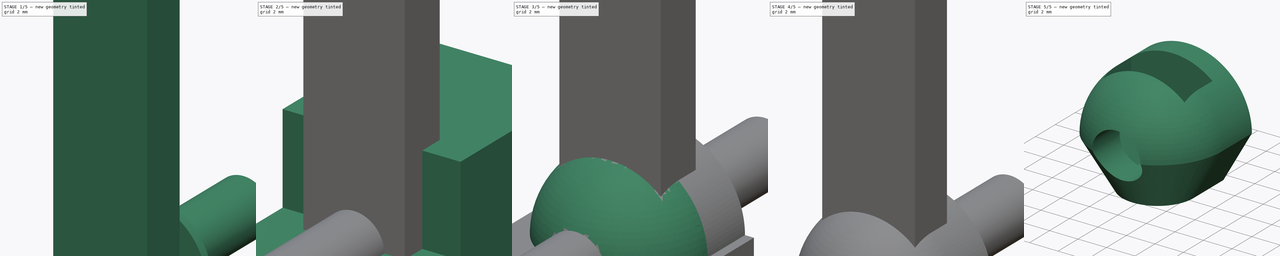
[diagram: build sequence overview — one tinted view per stage of 5, left to right]
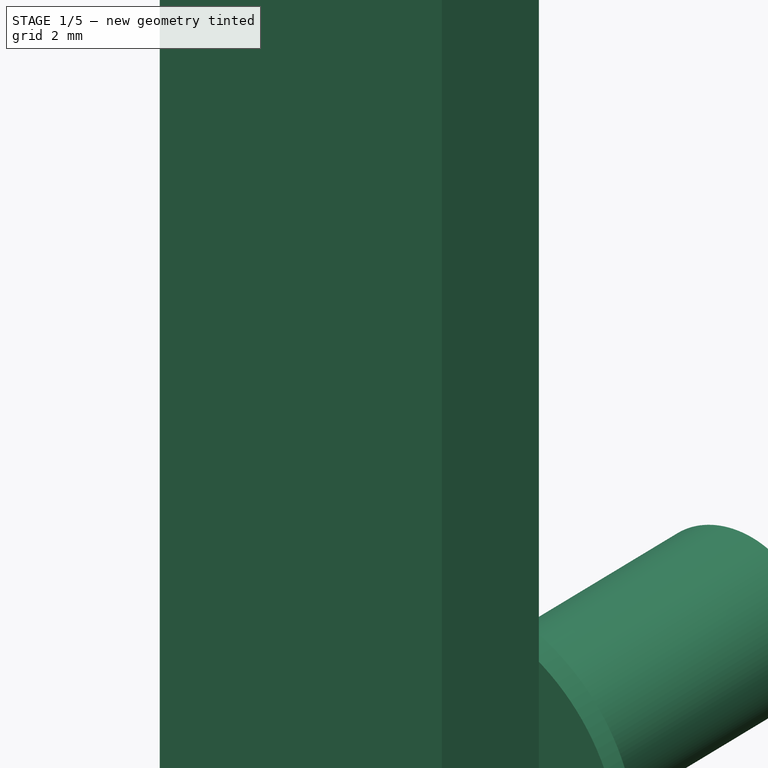
[diagram: stage 1 of 5 — iso view after this stage's code; geometry added in this stage tinted green]
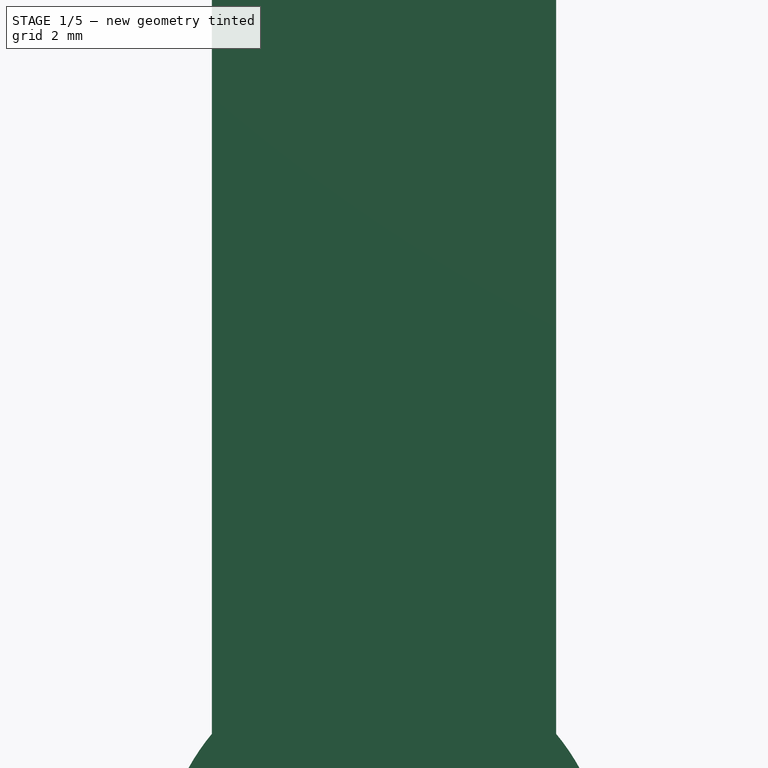
[diagram: stage 1 of 5 — front view after this stage's code; geometry added in this stage tinted green]
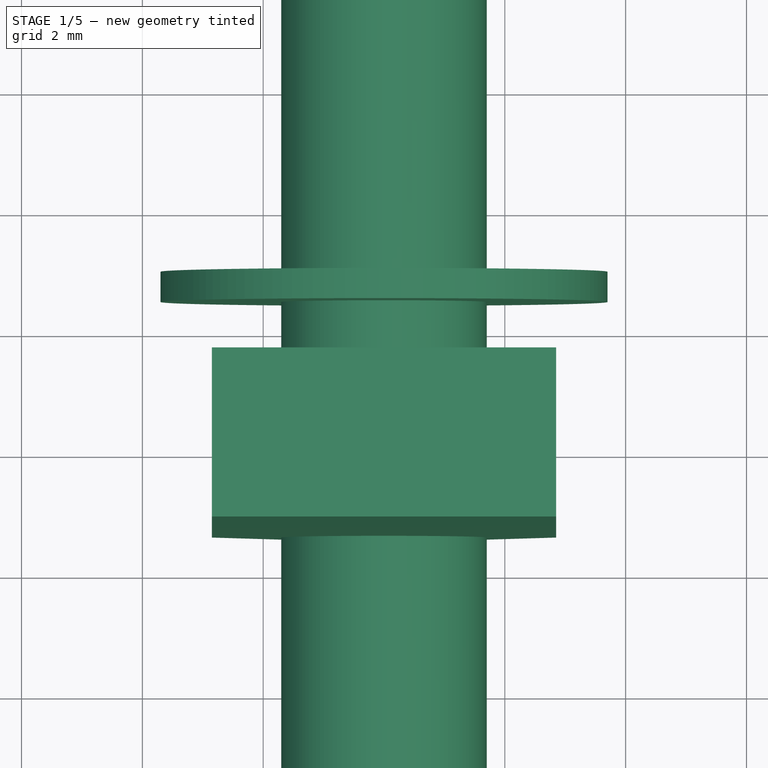
[diagram: stage 1 of 5 — top view after this stage's code; geometry added in this stage tinted green]
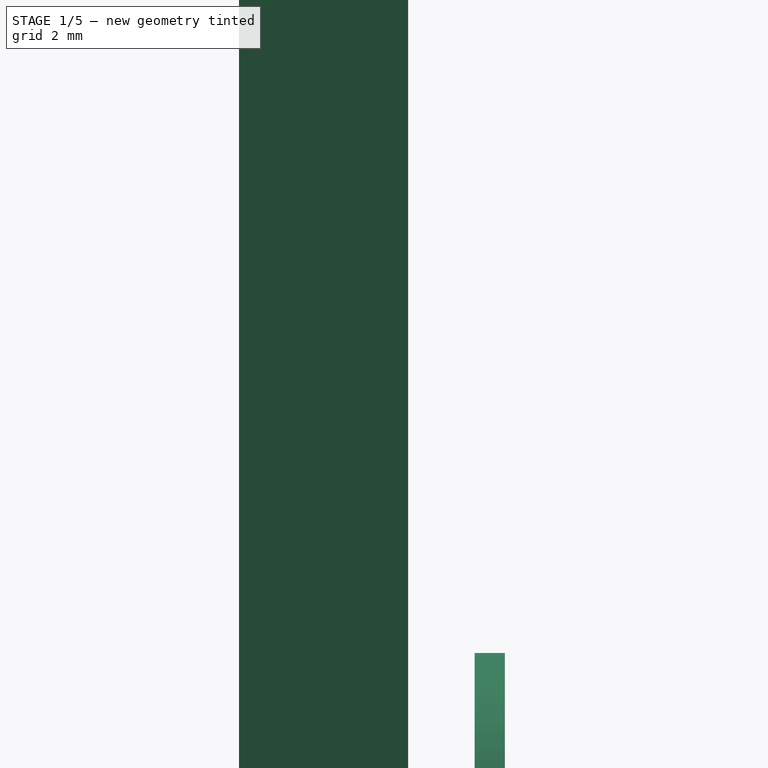
[diagram: stage 1 of 5 — right view after this stage's code; geometry added in this stage tinted green]
FCSTD DOCUMENT  (FreeCAD 0.18R16093 (Git))
Label: BallHeadHolder
License: All rights reserved
LicenseURL: http://en.wikipedia.org/wiki/All_rights_reserved
objects: Part::Cut×5, Part::Cylinder×3, Sketcher::SketchObject×3, Part::Box×2, Part::MultiFuse×2, PartDesign::Body×2, Part::Sphere×1, PartDesign::Plane×1, PartDesign::AdditiveLoft×1, PartDesign::Pad×1
note: 23 computed .brp shape members not serialized (recipe doc carries the construction recipe); baked Part::Feature solids carry a one-line shape summary decoded from their .brp

FEATURE [Sketcher::SketchObject] Sketch002
  MapMode = 5
  Placement = pos=(0,0,0) rot=(1,0,0;1.5708rad)
  Support = -> [XZ_Plane001]
  sketch-geometry (7):
    g0: LineSegment StartX=-1.42501 StartY=-2.46819 StartZ=0 EndX=1.42501 EndY=-2.46819 EndZ=0
    g1: LineSegment StartX=1.42501 StartY=-2.46819 StartZ=0 EndX=2.85 EndY=0 EndZ=0
    g2: LineSegment StartX=-1.42501 StartY=-2.46819 StartZ=0 EndX=-2.85 EndY=0 EndZ=0
    g3: Circle [constr] CenterX=-1e-16 CenterY=-2.18859e-05 CenterZ=0 NormalX=0 NormalY=0 NormalZ=1 AngleXU=0 Radius=2.85
    g4: LineSegment StartX=-2.85 StartY=0 StartZ=0 EndX=-2.85 EndY=20 EndZ=0
    g5: LineSegment StartX=2.85 StartY=0 StartZ=0 EndX=2.85 EndY=20 EndZ=0
    g6: LineSegment StartX=-2.85 StartY=20 StartZ=0 EndX=2.85 EndY=20 EndZ=0
  constraints (21):
    c: Coincident(g1,g0)
    c: Equal(g1,g0)
    c: Equal(g0,g2)
    c: Equal(g1,g0)
    c: Symmetric(g0,g0,g-2)
    c: DistanceX(g2,g1) = 5.7
    c: Diameter(g3) = 5.7
    c: Vertical(g4)
    c: Vertical(g5)
    c: Coincident(g6,g4)
    c: Coincident(g6,g5)
    c: Horizontal(g6)
    c: Symmetric(g1,g2,g-2)
    c: Coincident(g5,g1)
    c: Coincident(g0,g2)
    c: PointOnObject(g0,g3)
    c: Coincident(g4,g2)
    c: PointOnObject(g1,g-1)
    c: DistanceY(g-1,g4) = 20
    c: PointOnObject(g2,g3)
    c: PointOnObject(g1,g3)
FEATURE [PartDesign::Pad] Pad
  Length = 2.8
  Length2 = 100
  Midplane = true
  Placement = pos=(0,0,0) rot=(1,0,0;1.5708rad)
  Profile = -> Sketch002
  Type = 0
FEATURE [Part::Cylinder] Cylinder001
  Angle = 360
  AttacherType = Attacher::AttachEngine3D
  Height = 20
  Placement = pos=(0,-9,6e-15) rot=(1,0,0;4.71239rad)
  Radius = 1.7
FEATURE [Part::Cylinder] Cylinder002
  Angle = 360
  AttacherType = Attacher::AttachEngine3D
  Height = 0.5
  Placement = pos=(0,2.5,-6e-16) rot=(1,0,0;4.71239rad)
  Radius = 3.7
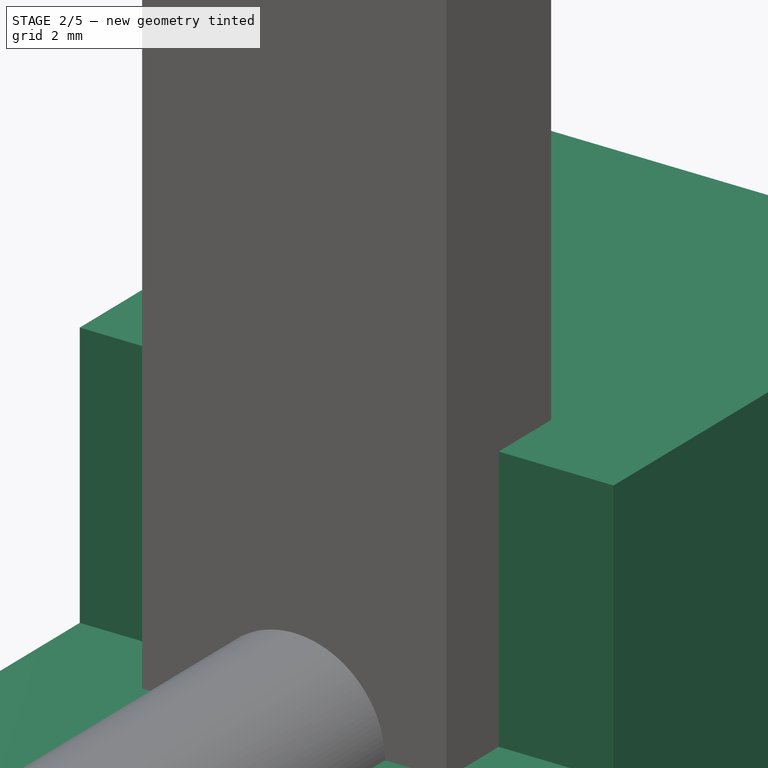
[diagram: stage 2 of 5 — iso view after this stage's code; geometry added in this stage tinted green]
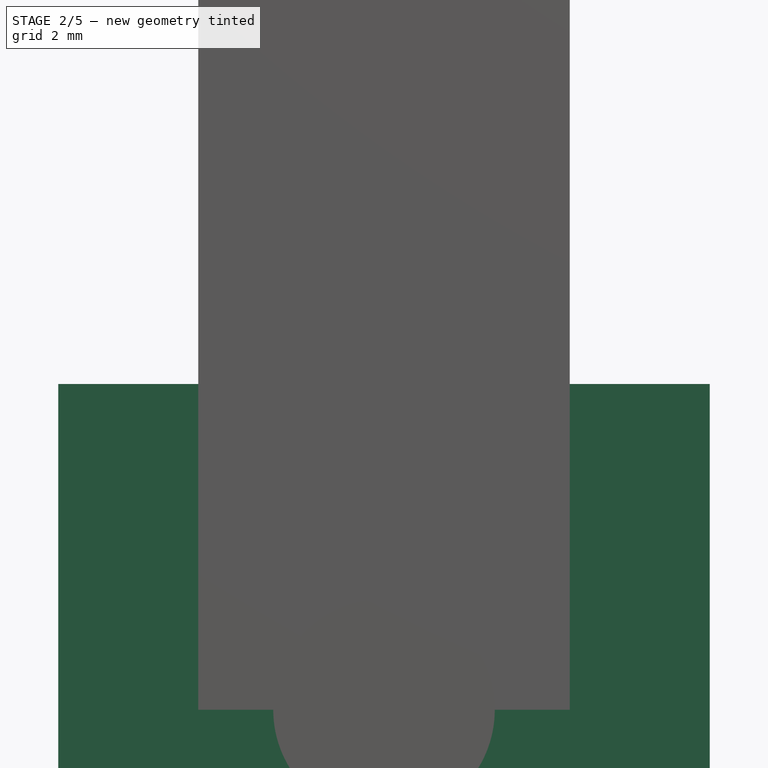
[diagram: stage 2 of 5 — front view after this stage's code; geometry added in this stage tinted green]
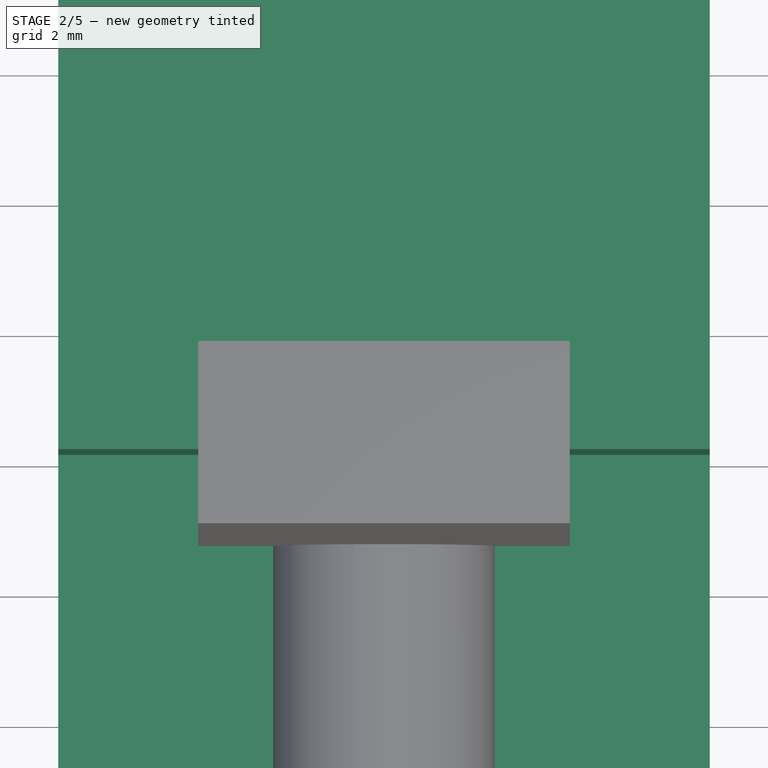
[diagram: stage 2 of 5 — top view after this stage's code; geometry added in this stage tinted green]
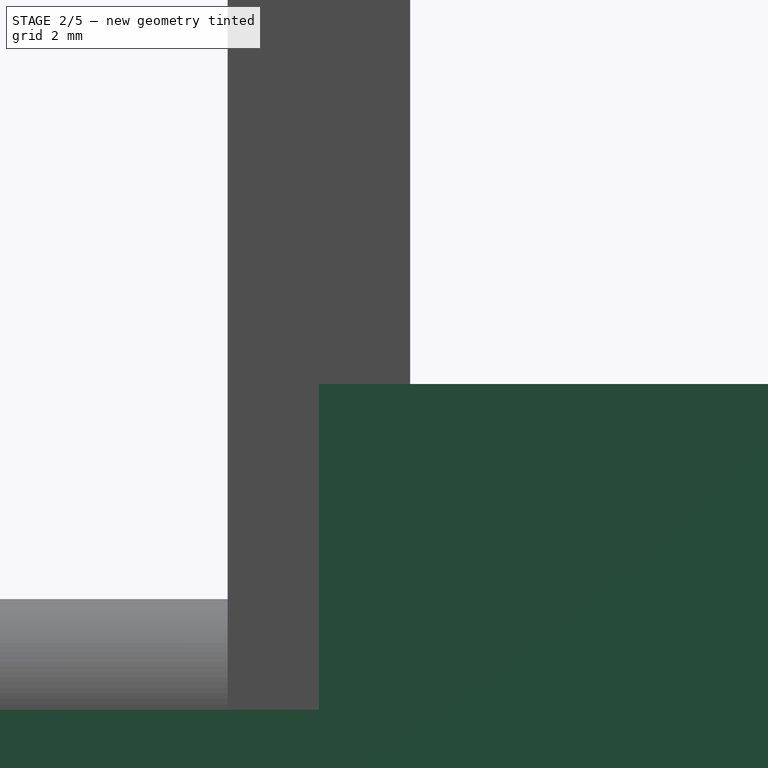
[diagram: stage 2 of 5 — right view after this stage's code; geometry added in this stage tinted green]
FEATURE [Part::Box] Box  label="Cube"
  AttacherType = Attacher::AttachEngine3D
  Height = 10
  Length = 10
  Placement = pos=(-5,0,-5) rot=(0,0,1;0rad)
  Width = 10
FEATURE [Part::Cylinder] Cylinder
  Angle = 360
  AttacherType = Attacher::AttachEngine3D
  Height = 3
  Placement = pos=(0,0,0) rot=(-1,0,0;1.5708rad)
  Radius = 4.5
FEATURE [PartDesign::Body] Body
  Group = -> [Sketch,DatumPlane,Sketch001,AdditiveLoft]
  Origin = -> Origin
  Tip = -> AdditiveLoft
FEATURE [Part::Box] Box001  label="Cube001"
  AttacherType = Attacher::AttachEngine3D
  Height = 10
  Length = 10
  Placement = pos=(-5,-7,-10) rot=(0,0,1;0rad)
  Width = 10
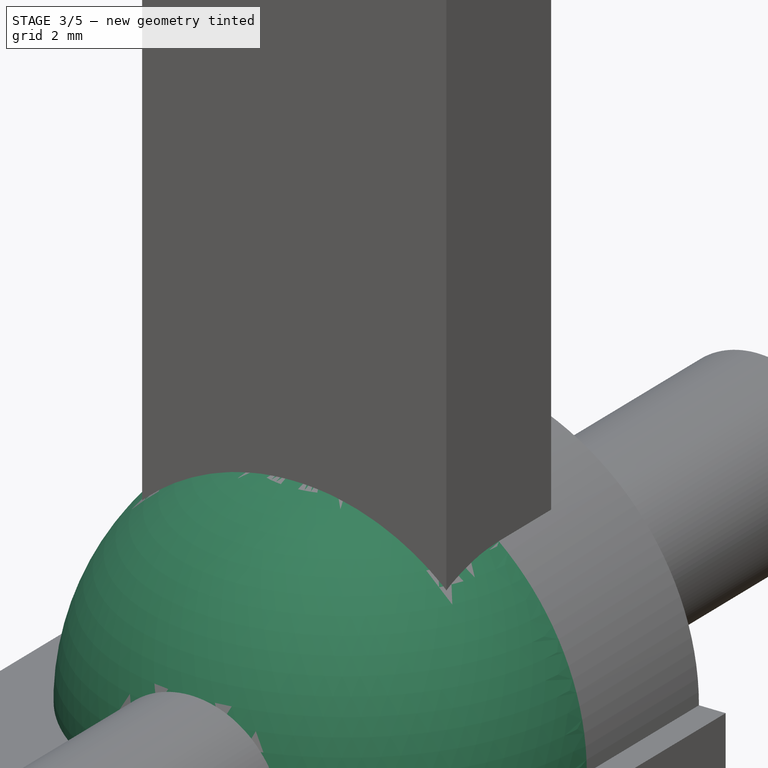
[diagram: stage 3 of 5 — iso view after this stage's code; geometry added in this stage tinted green]
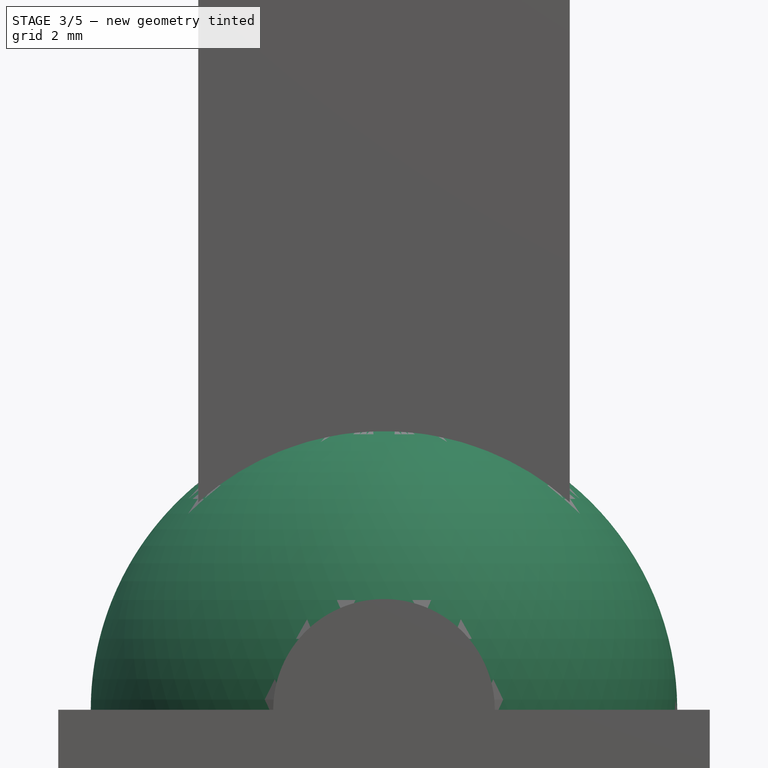
[diagram: stage 3 of 5 — front view after this stage's code; geometry added in this stage tinted green]
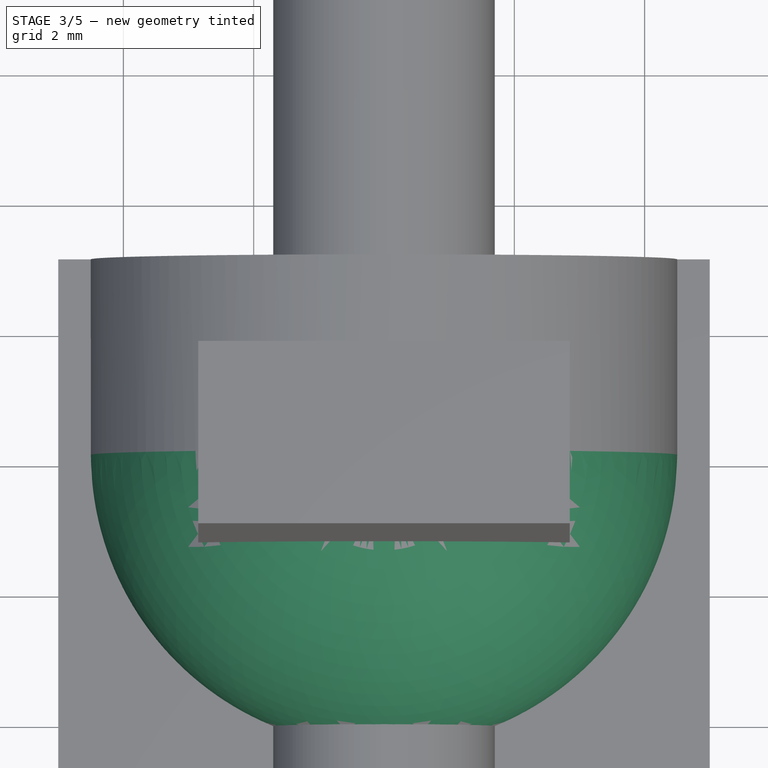
[diagram: stage 3 of 5 — top view after this stage's code; geometry added in this stage tinted green]
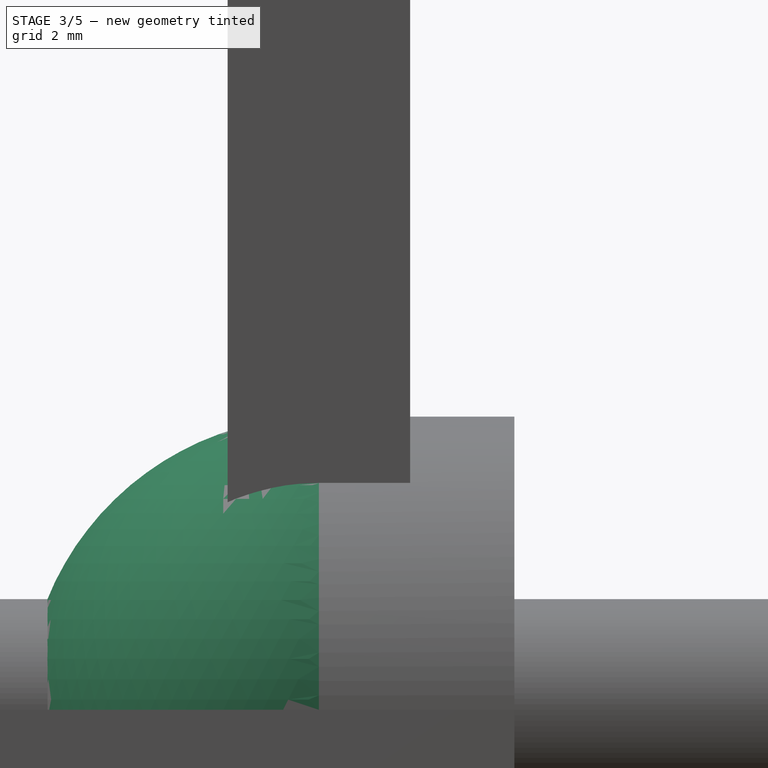
[diagram: stage 3 of 5 — right view after this stage's code; geometry added in this stage tinted green]
FEATURE [Part::Sphere] Sphere
  Angle1 = -90
  Angle2 = 90
  Angle3 = 360
  AttacherType = Attacher::AttachEngine3D
  Radius = 4.5
FEATURE [Part::Cut] Cut
  Base = -> Sphere
  Tool = -> Box
FEATURE [Part::MultiFuse] Fusion
  Shapes = -> [Cylinder,Cut]
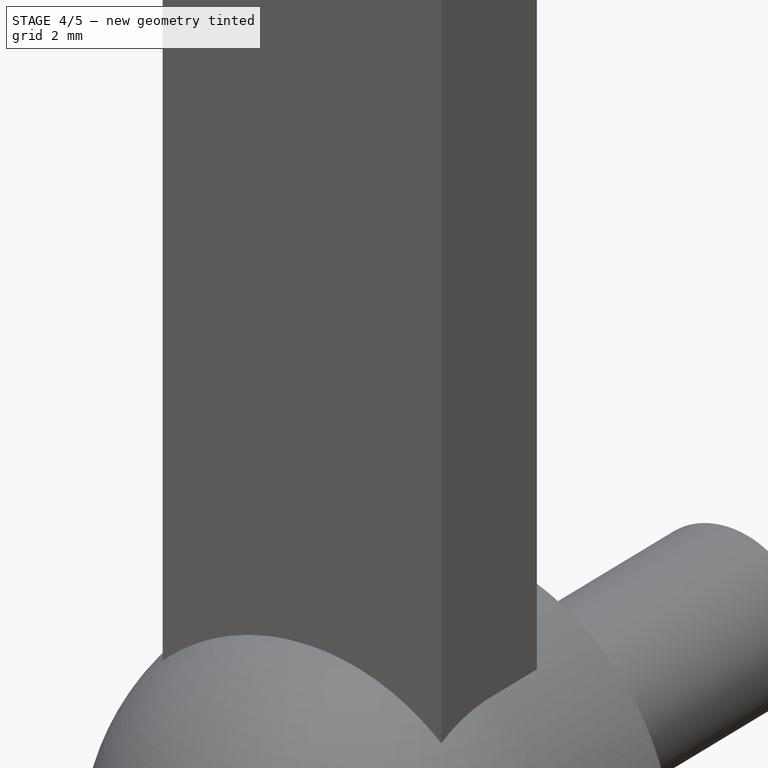
[diagram: stage 4 of 5 — iso view after this stage's code; geometry added in this stage tinted green]
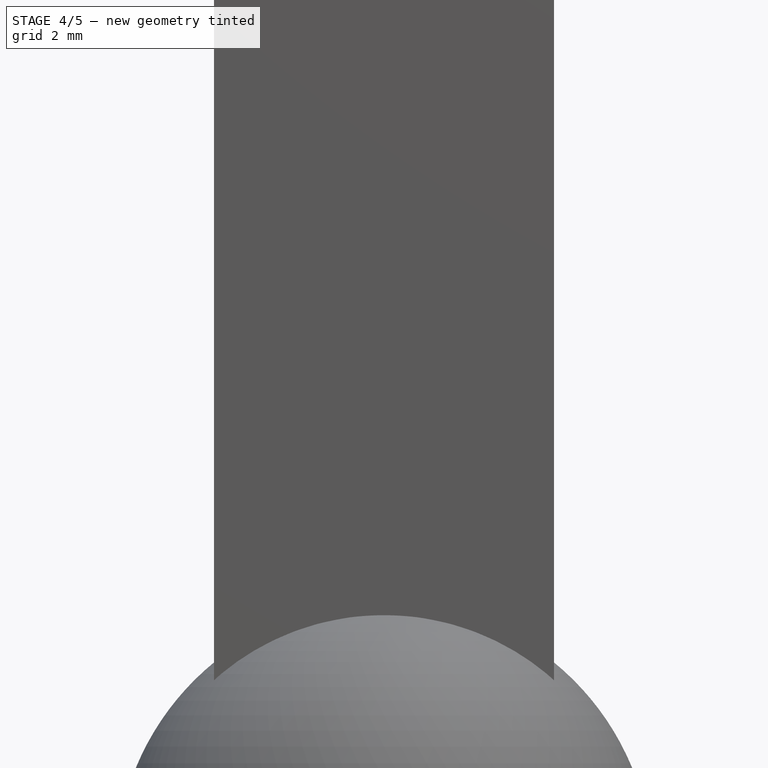
[diagram: stage 4 of 5 — front view after this stage's code; geometry added in this stage tinted green]
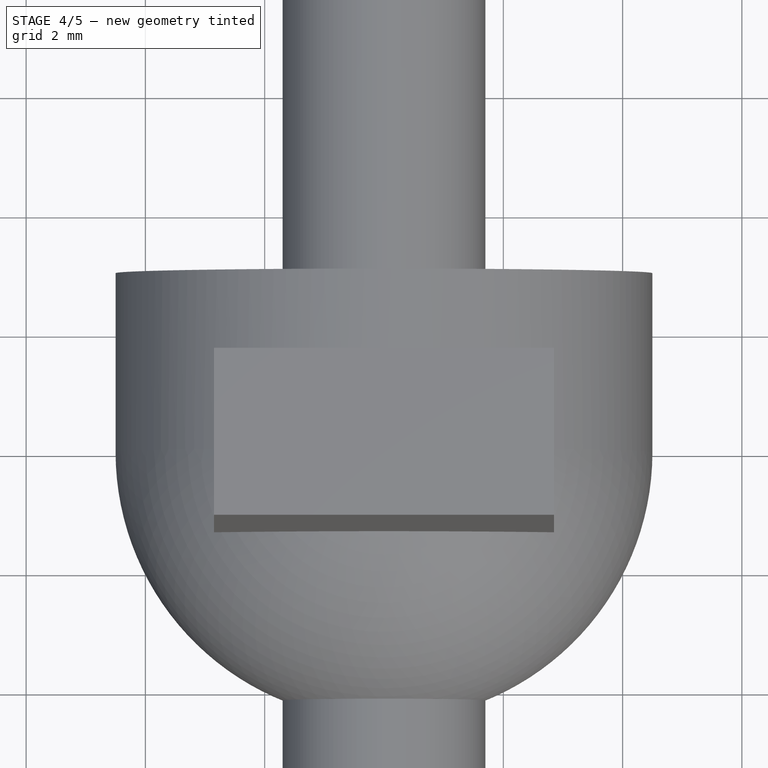
[diagram: stage 4 of 5 — top view after this stage's code; geometry added in this stage tinted green]
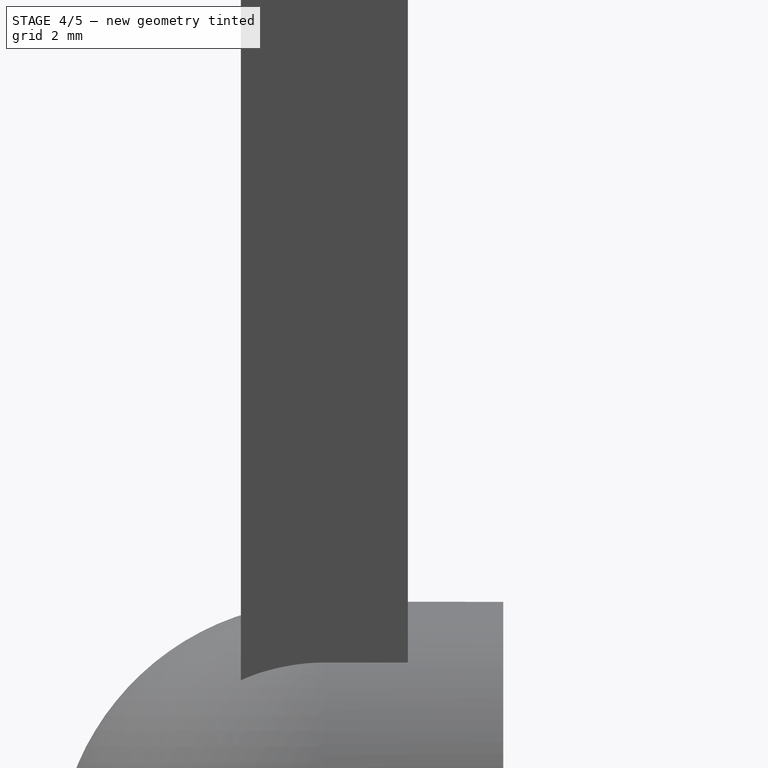
[diagram: stage 4 of 5 — right view after this stage's code; geometry added in this stage tinted green]
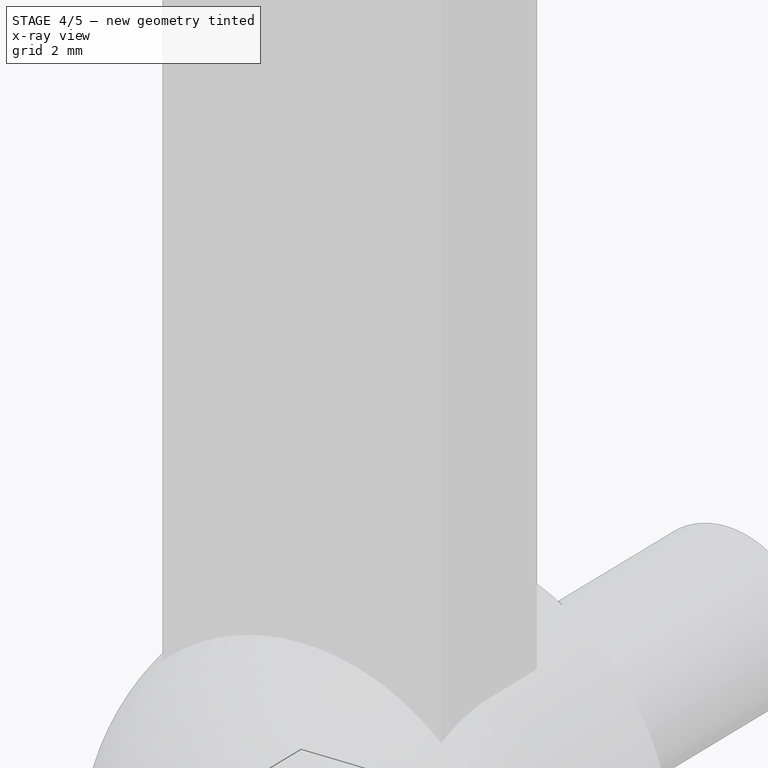
[diagram: stage 4 of 5 — x-ray composite at the iso view; earlier geometry ghosted, this stage's added geometry solid]
FEATURE [Sketcher::SketchObject] Sketch
  MapMode = 5
  Support = -> [XY_Plane]
  sketch-geometry (4):
    g0: ArcOfCircle CenterX=0 CenterY=0 CenterZ=0 NormalX=0 NormalY=0 NormalZ=1 AngleXU=0 Radius=4.5 StartAngle=3.14159 EndAngle=6.28319
    g1: LineSegment StartX=-4.5 StartY=6e-16 StartZ=0 EndX=-4.5 EndY=3 EndZ=0
    g2: LineSegment StartX=4.5 StartY=-1.1e-15 StartZ=0 EndX=4.5 EndY=3 EndZ=0
    g3: LineSegment StartX=-4.5 StartY=3 StartZ=0 EndX=4.5 EndY=3 EndZ=0
  constraints (12):
    c: Coincident(g0,g-1)
    c: PointOnObject(g0,g-1)
    c: PointOnObject(g0,g-1)
    c: Coincident(g1,g0)
    c: Vertical(g1)
    c: Coincident(g2,g0)
    c: Vertical(g2)
    c: Coincident(g3,g1)
    c: Coincident(g3,g2)
    c: Horizontal(g3)
    c: DistanceX(g3,g3) = 9
    c: DistanceY(g1,g1) = 3
FEATURE [PartDesign::Plane] DatumPlane
  AttachmentOffset = pos=(0,0,-3.5) rot=(0,0,1;0rad)
  Length = 24
  MapMode = 2
  Placement = pos=(0,0,-3.5) rot=(0,0,1;0rad)
  ResizeMode = 0
  Support = -> [XY_Plane]
  Width = 24
FEATURE [Sketcher::SketchObject] Sketch001
  MapMode = 5
  Placement = pos=(0,0,-3.5) rot=(0,0,1;0rad)
  Support = -> [DatumPlane]
  sketch-geometry (4):
    g0: ArcOfCircle CenterX=0 CenterY=0 CenterZ=0 NormalX=0 NormalY=0 NormalZ=1 AngleXU=0 Radius=2.5 StartAngle=3.14159 EndAngle=6.28319
    g1: LineSegment StartX=-2.5 StartY=3e-16 StartZ=0 EndX=-2.5 EndY=3 EndZ=0
    g2: LineSegment StartX=2.5 StartY=-6e-16 StartZ=0 EndX=2.5 EndY=3 EndZ=0
    g3: LineSegment StartX=-2.5 StartY=3 StartZ=0 EndX=2.5 EndY=3 EndZ=0
  constraints (12):
    c: Coincident(g0,g-1)
    c: PointOnObject(g0,g-1)
    c: PointOnObject(g0,g-1)
    c: Coincident(g1,g0)
    c: Vertical(g1)
    c: Coincident(g2,g0)
    c: Vertical(g2)
    c: Coincident(g3,g2)
    c: Horizontal(g3)
    c: DistanceY(g1,g1) = 3
    c: DistanceX(g3,g3) = 5
    c: Coincident(g1,g3)
FEATURE [PartDesign::AdditiveLoft] AdditiveLoft
  Closed = false
  Profile = -> Sketch
  Ruled = false
  Sections = -> [Sketch001]
FEATURE [Part::Cut] Cut001
  Base = -> Fusion
  Tool = -> Box001
FEATURE [Part::MultiFuse] Fusion001
  Shapes = -> [Body,Cut001]
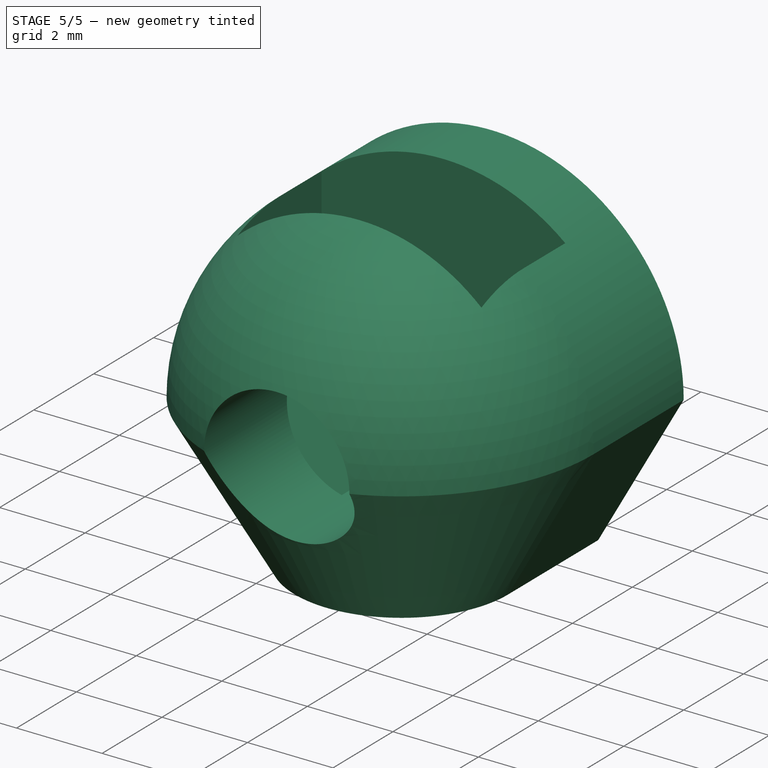
[diagram: stage 5 of 5 — iso view after this stage's code; geometry added in this stage tinted green]
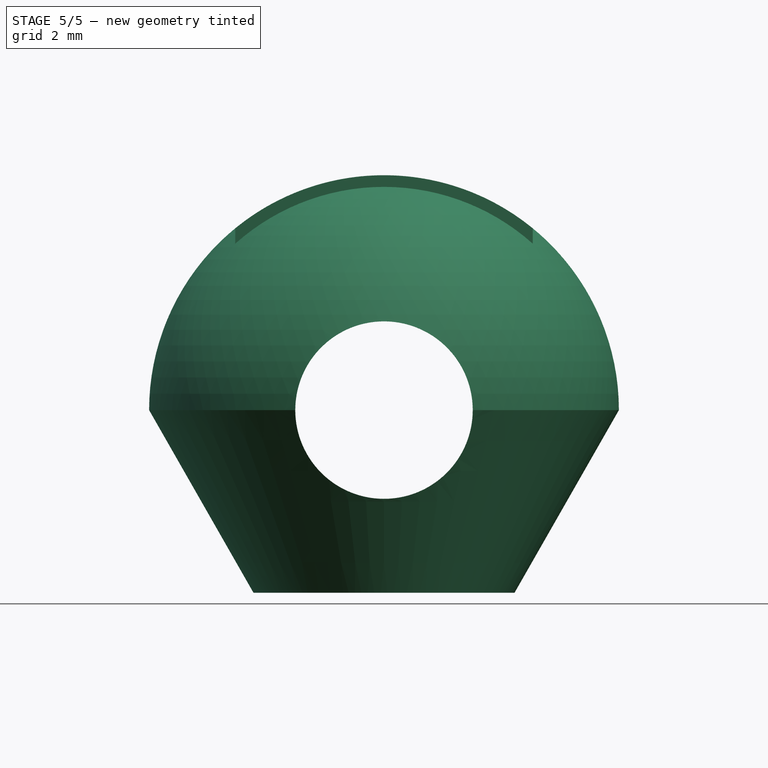
[diagram: stage 5 of 5 — front view after this stage's code; geometry added in this stage tinted green]
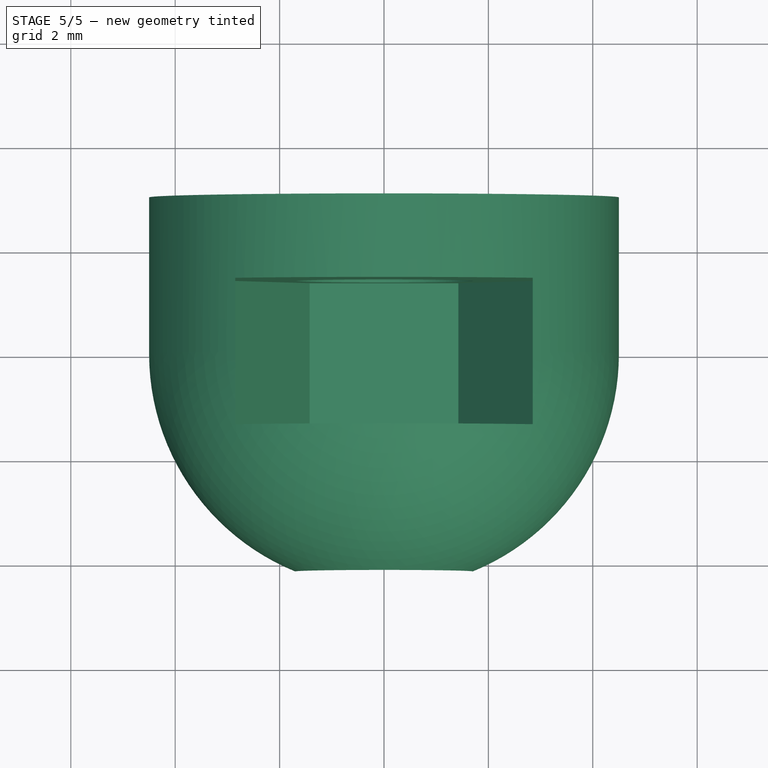
[diagram: stage 5 of 5 — top view after this stage's code; geometry added in this stage tinted green]
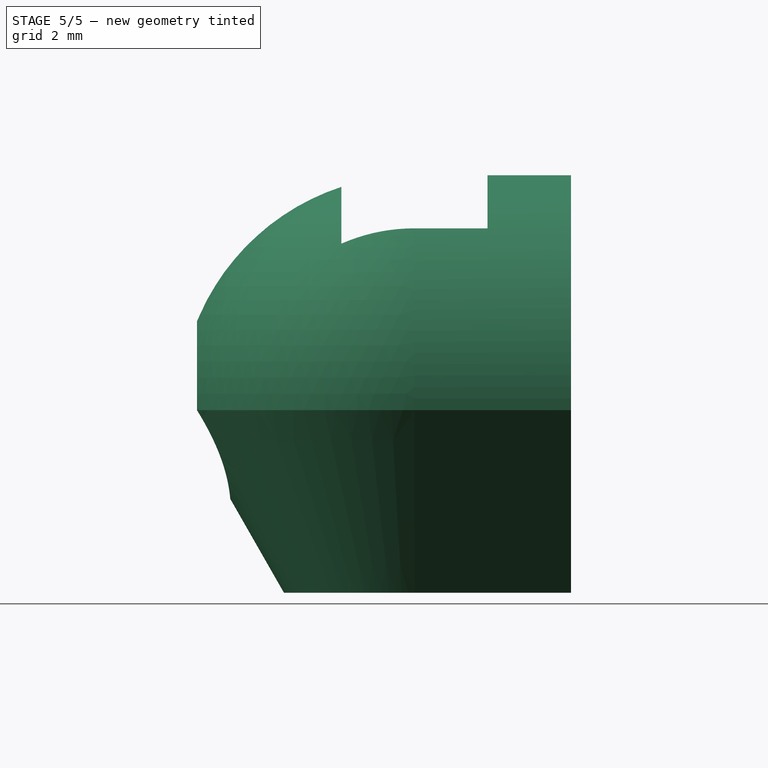
[diagram: stage 5 of 5 — right view after this stage's code; geometry added in this stage tinted green]
FEATURE [PartDesign::Body] Body001
  Group = -> [Sketch002,Pad]
  Origin = -> Origin001
  Tip = -> Pad
FEATURE [Part::Cut] Cut002
  Base = -> Fusion001
  Tool = -> Body001
FEATURE [Part::Cut] Cut003
  Base = -> Cut002
  Tool = -> Cylinder001
FEATURE [Part::Cut] Cut004
  Base = -> Cut003
  Tool = -> Cylinder002
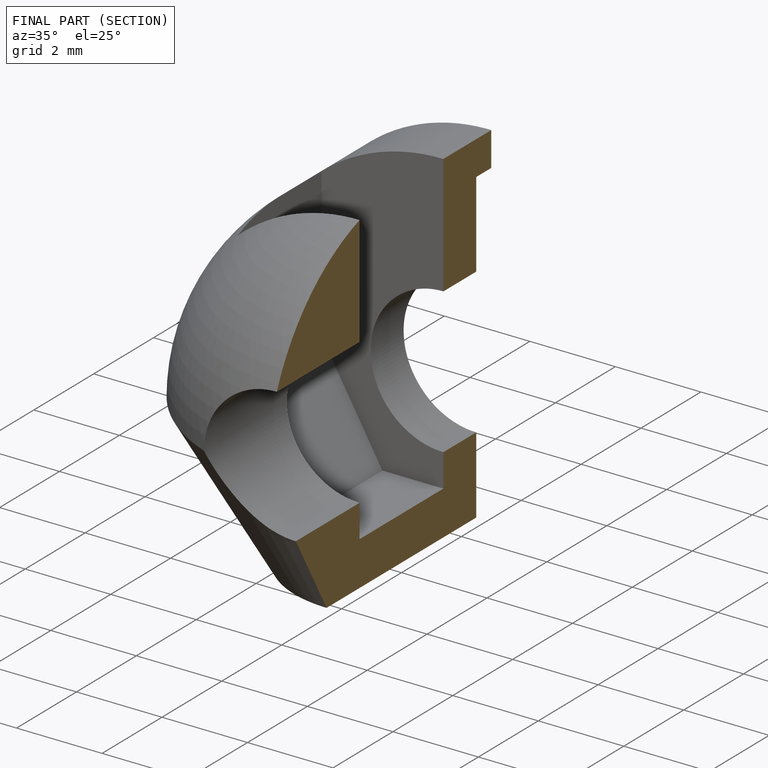
[diagram: finished part — half-section view (interior)]
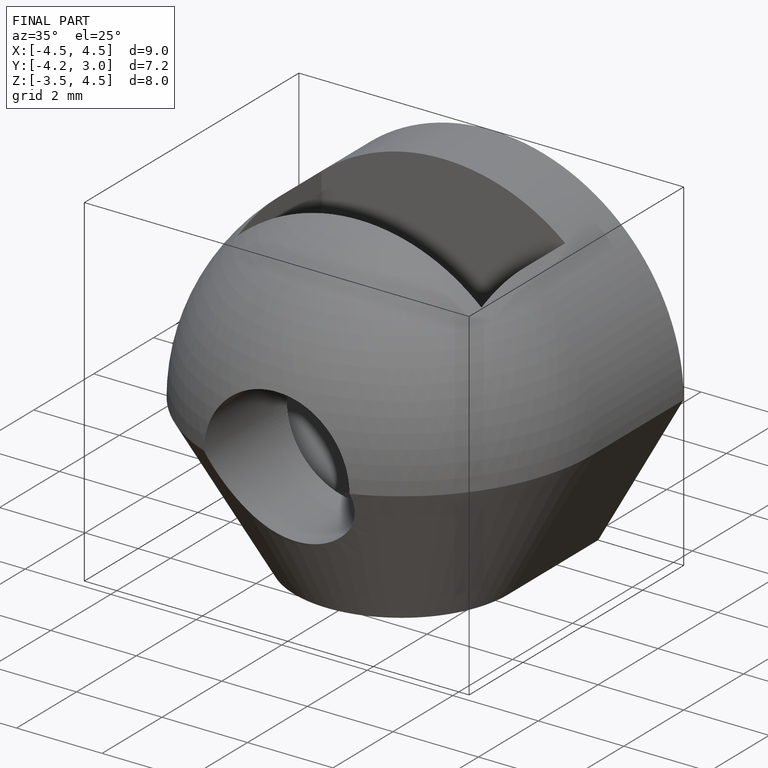
[diagram: finished part — iso view with bounding-box wireframe]
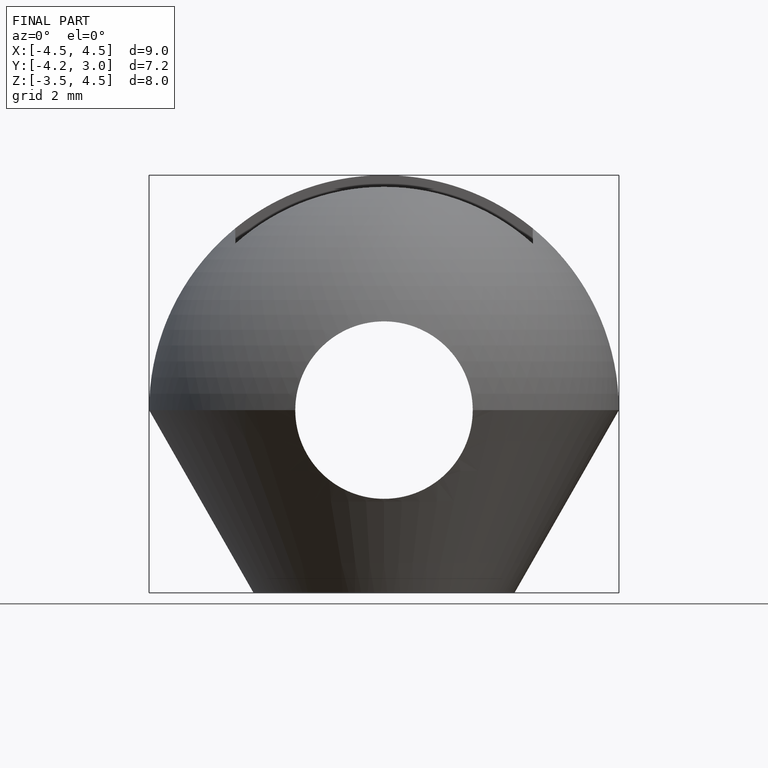
[diagram: finished part — front view with bounding-box wireframe]
